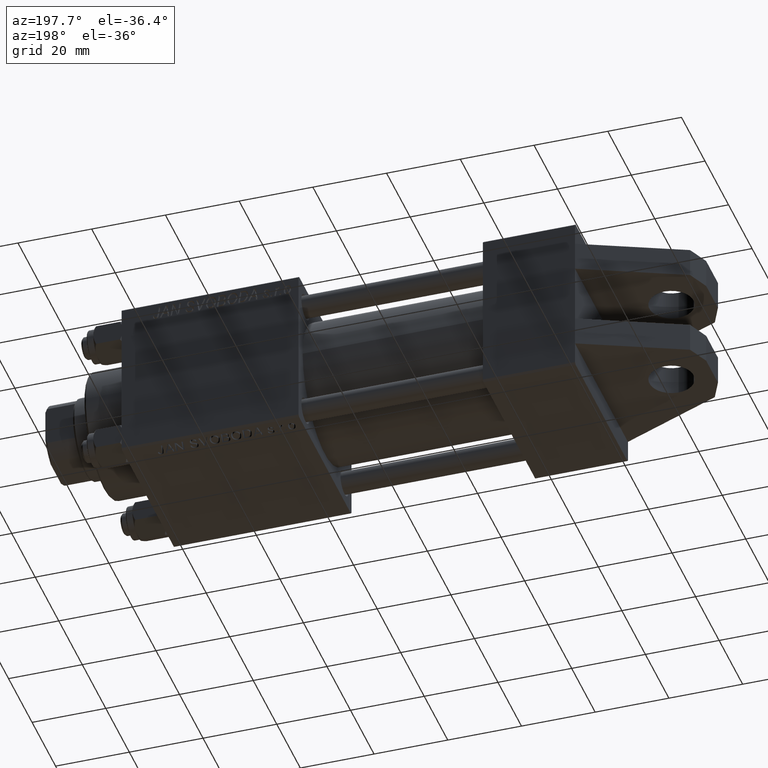
[diagram: clean part render]
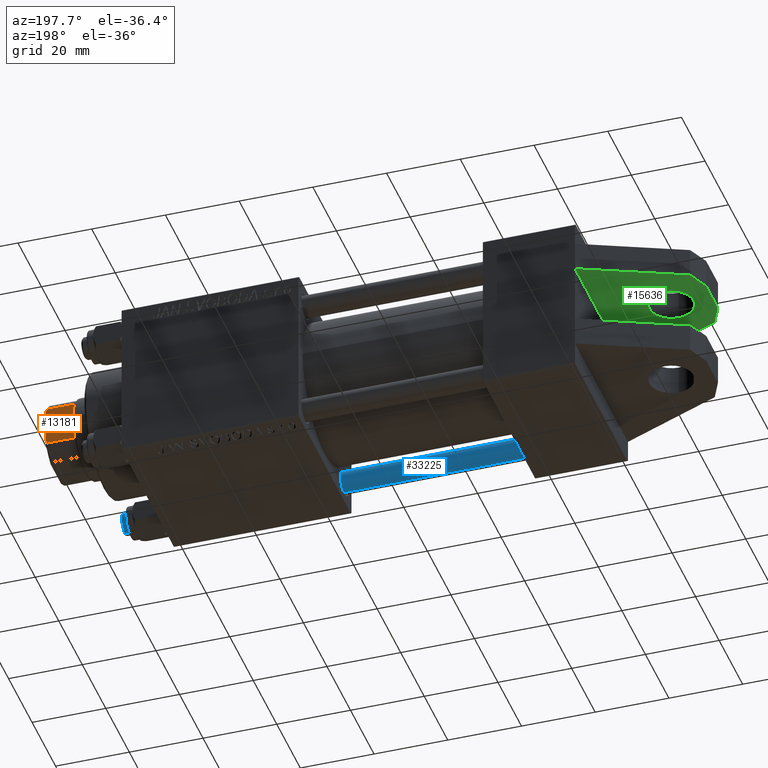
[diagram: same view with three faces highlighted in distinct colors, each labeled with its STEP entity id]
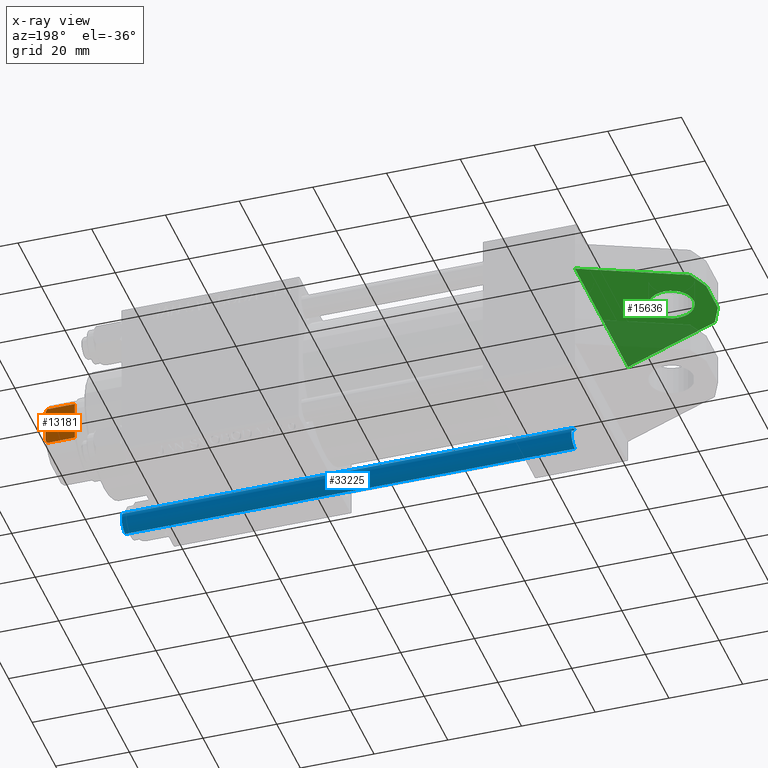
[diagram: x-ray of the same camera — body ghosted, the three highlighted faces saturated]
A machine part, auxiliary view with three faces highlighted in distinct colors.
The next image is the same camera in x-ray (body ghosted, the three faces saturated) — at least one of them is partly hidden behind the body in this view.
Their STEP definitions:

[orange] entity #13181 — the highlighted planar face has unit normal (0, -1, -0).
#341 = CARTESIAN_POINT ( 'NONE',  ( -8.999999999999996447, 5.408326913195988794, 115.0000000000000284 ) ) ;
#411 = LINE ( 'NONE', #8716, #27909 ) ;
#687 = CARTESIAN_POINT ( 'NONE',  ( -9.000000000000001776, -4.714305797500246697, 122.8450817439748448 ) ) ;
#2426 = CARTESIAN_POINT ( 'NONE',  ( -9.000000000000000000, -5.408326913195987018, 115.0000000000000284 ) ) ;
#2748 = ORIENTED_EDGE ( 'NONE', *, *, #19144, .T. ) ;
#3876 = CARTESIAN_POINT ( 'NONE',  ( -9.000000000000003553, 4.358898943540662430, 123.0000000000000000 ) ) ;
#4619 = CARTESIAN_POINT ( 'NONE',  ( -9.000000000000003553, -4.358898943540665094, 123.0000000000000000 ) ) ;
#7758 = EDGE_CURVE ( 'NONE', #40980, #47713, #25967, .T. ) ;
#8093 = LINE ( 'NONE', #11870, #24385 ) ;
#8716 = CARTESIAN_POINT ( 'NONE',  ( -8.999999999999996447, 5.408326913195991459, -0.001000000000001000089 ) ) ;
#9598 = VERTEX_POINT ( 'NONE', #48860 ) ;
#9675 = EDGE_CURVE ( 'NONE', #12448, #9598, #37076, .T. ) ;
#11870 = CARTESIAN_POINT ( 'NONE',  ( -9.000000000000003553, 8.999999999999998224, 123.0000000000000000 ) ) ;
#12448 = VERTEX_POINT ( 'NONE', #2426 ) ;
#12572 = DIRECTION ( 'NONE',  ( 1.000000000000000000, 9.637352644315595243E-17, -0.000000000000000000 ) ) ;
#13181 = ADVANCED_FACE ( 'NONE', ( #18140 ), #35201, .F. ) ;
#15991 = EDGE_CURVE ( 'NONE', #38950, #47713, #411, .T. ) ;
#18140 = FACE_OUTER_BOUND ( 'NONE', #32909, .T. ) ;
#19144 = EDGE_CURVE ( 'NONE', #38950, #12448, #47921, .T. ) ;
#20133 = CARTESIAN_POINT ( 'NONE',  ( -8.999999999999996447, 5.408326913195991459, 122.5000000000000000 ) ) ;
#20542 = CARTESIAN_POINT ( 'NONE',  ( -9.000000000000000000, -5.408326913195987018, 122.5000000000000000 ) ) ;
#21537 = CARTESIAN_POINT ( 'NONE',  ( -9.000000000000003553, 8.999999999999998224, 115.0000000000000000 ) ) ;
#22191 = EDGE_CURVE ( 'NONE', #9598, #47287, #32525, .T. ) ;
#22728 = CARTESIAN_POINT ( 'NONE',  ( -9.000000000000003553, 5.063687070142450786, 122.6775166608139216 ) ) ;
#23311 = CARTESIAN_POINT ( 'NONE',  ( -9.000000000000000000, -5.063687070142446345, 122.6775166608139216 ) ) ;
#24385 = VECTOR ( 'NONE', #42017, 1000.000000000000000 ) ;
#25967 = B_SPLINE_CURVE_WITH_KNOTS ( 'NONE', 3,
 ( #49354, #26016, #22728, #42061 ),
 .UNSPECIFIED., .F., .F.,
 ( 4, 4 ),
 ( 0.000000000000000000, 0.001162453897363206236 ),
 .UNSPECIFIED. ) ;
#26016 = CARTESIAN_POINT ( 'NONE',  ( -9.000000000000001776, 4.714305797500244921, 122.8450817439748448 ) ) ;
#27909 = VECTOR ( 'NONE', #35119, 1000.000000000000000 ) ;
#30934 = CARTESIAN_POINT ( 'NONE',  ( -9.000000000000003553, 8.999999999999998224, 123.0000000000000000 ) ) ;
#32525 = B_SPLINE_CURVE_WITH_KNOTS ( 'NONE', 3,
 ( #20542, #23311, #687, #38893 ),
 .UNSPECIFIED., .F., .F.,
 ( 4, 4 ),
 ( 0.000000000000000000, 0.001162453897363199297 ),
 .UNSPECIFIED. ) ;
#32909 = EDGE_LOOP ( 'NONE', ( #40272, #42917, #34760, #39762, #40735, #2748 ) ) ;
#33105 = DIRECTION ( 'NONE',  ( 9.637352644315595243E-17, -1.000000000000000000, 0.000000000000000000 ) ) ;
#34440 = VECTOR ( 'NONE', #33105, 1000.000000000000000 ) ;
#34760 = ORIENTED_EDGE ( 'NONE', *, *, #42316, .F. ) ;
#35119 = DIRECTION ( 'NONE',  ( -0.000000000000000000, -0.000000000000000000, 1.000000000000000000 ) ) ;
#35201 = PLANE ( 'NONE',  #43872 ) ;
#37076 = LINE ( 'NONE', #37803, #40691 ) ;
#37803 = CARTESIAN_POINT ( 'NONE',  ( -9.000000000000000000, -5.408326913195987018, -0.001000000000001000089 ) ) ;
#38893 = CARTESIAN_POINT ( 'NONE',  ( -9.000000000000003553, -4.358898943540665094, 123.0000000000000000 ) ) ;
#38950 = VERTEX_POINT ( 'NONE', #341 ) ;
#39205 = DIRECTION ( 'NONE',  ( -9.637352644315595243E-17, 1.000000000000000000, 0.000000000000000000 ) ) ;
#39762 = ORIENTED_EDGE ( 'NONE', *, *, #7758, .T. ) ;
#40272 = ORIENTED_EDGE ( 'NONE', *, *, #9675, .T. ) ;
#40691 = VECTOR ( 'NONE', #48613, 1000.000000000000000 ) ;
#40735 = ORIENTED_EDGE ( 'NONE', *, *, #15991, .F. ) ;
#40980 = VERTEX_POINT ( 'NONE', #3876 ) ;
#42017 = DIRECTION ( 'NONE',  ( 9.637352644315595243E-17, -1.000000000000000000, 0.000000000000000000 ) ) ;
#42061 = CARTESIAN_POINT ( 'NONE',  ( -8.999999999999996447, 5.408326913195991459, 122.5000000000000000 ) ) ;
#42316 = EDGE_CURVE ( 'NONE', #40980, #47287, #8093, .T. ) ;
#42917 = ORIENTED_EDGE ( 'NONE', *, *, #22191, .T. ) ;
#43872 = AXIS2_PLACEMENT_3D ( 'NONE', #30934, #12572, #39205 ) ;
#47287 = VERTEX_POINT ( 'NONE', #4619 ) ;
#47713 = VERTEX_POINT ( 'NONE', #20133 ) ;
#47921 = LINE ( 'NONE', #21537, #34440 ) ;
#48613 = DIRECTION ( 'NONE',  ( -0.000000000000000000, -0.000000000000000000, 1.000000000000000000 ) ) ;
#48860 = CARTESIAN_POINT ( 'NONE',  ( -9.000000000000000000, -5.408326913195987018, 122.5000000000000000 ) ) ;
#49354 = CARTESIAN_POINT ( 'NONE',  ( -9.000000000000003553, 4.358898943540662430, 123.0000000000000000 ) ) ;

[blue] entity #33225 — the highlighted cylindrical surface (edge-blend (fillet) strip) has radius 3 mm, axis along (-1, -0, 0).
#550 = CARTESIAN_POINT ( 'NONE',  ( -3.000000000000000444, 0.000000000000000000, 0.5000000000000004441 ) ) ;
#1844 = DIRECTION ( 'NONE',  ( -1.000000000000000000, 0.000000000000000000, 0.000000000000000000 ) ) ;
#2494 = CARTESIAN_POINT ( 'NONE',  ( 3.000000000000000444, 3.673940397442060361E-16, 122.4999999999999858 ) ) ;
#3912 = VERTEX_POINT ( 'NONE', #550 ) ;
#4163 = ORIENTED_EDGE ( 'NONE', *, *, #41540, .T. ) ;
#5870 = AXIS2_PLACEMENT_3D ( 'NONE', #26701, #42012, #7594 ) ;
#7594 = DIRECTION ( 'NONE',  ( 1.000000000000000000, 0.000000000000000000, 0.000000000000000000 ) ) ;
#7773 = AXIS2_PLACEMENT_3D ( 'NONE', #45080, #10650, #14682 ) ;
#8895 = DIRECTION ( 'NONE',  ( -0.000000000000000000, -0.000000000000000000, -1.000000000000000000 ) ) ;
#9691 = EDGE_CURVE ( 'NONE', #3912, #25500, #33491, .T. ) ;
#10259 = VECTOR ( 'NONE', #8895, 1000.000000000000000 ) ;
#10650 = DIRECTION ( 'NONE',  ( -0.000000000000000000, -0.000000000000000000, 1.000000000000000000 ) ) ;
#13089 = CARTESIAN_POINT ( 'NONE',  ( -3.000000000000000444, 0.000000000000000000, 122.4999999999999858 ) ) ;
#14414 = DIRECTION ( 'NONE',  ( -0.000000000000000000, -0.000000000000000000, -1.000000000000000000 ) ) ;
#14682 = DIRECTION ( 'NONE',  ( 1.000000000000000000, 0.000000000000000000, 0.000000000000000000 ) ) ;
#15908 = EDGE_LOOP ( 'NONE', ( #16596, #35443, #4163, #32095 ) ) ;
#16273 = EDGE_CURVE ( 'NONE', #21963, #25500, #39304, .T. ) ;
#16596 = ORIENTED_EDGE ( 'NONE', *, *, #16273, .F. ) ;
#21963 = VERTEX_POINT ( 'NONE', #2494 ) ;
#24745 = CARTESIAN_POINT ( 'NONE',  ( 3.000000000000000444, 3.673940397442060361E-16, 123.0000000000000000 ) ) ;
#25145 = AXIS2_PLACEMENT_3D ( 'NONE', #45050, #14414, #1844 ) ;
#25500 = VERTEX_POINT ( 'NONE', #46852 ) ;
#26149 = CARTESIAN_POINT ( 'NONE',  ( -3.000000000000000444, 0.000000000000000000, 123.0000000000000000 ) ) ;
#26701 = CARTESIAN_POINT ( 'NONE',  ( 0.000000000000000000, 0.000000000000000000, 122.4999999999999858 ) ) ;
#28359 = VECTOR ( 'NONE', #31100, 1000.000000000000000 ) ;
#31100 = DIRECTION ( 'NONE',  ( -0.000000000000000000, -0.000000000000000000, -1.000000000000000000 ) ) ;
#32095 = ORIENTED_EDGE ( 'NONE', *, *, #9691, .T. ) ;
#32788 = CYLINDRICAL_SURFACE ( 'NONE', #25145, 3.000000000000000444 ) ;
#33225 = ADVANCED_FACE ( 'NONE', ( #48330 ), #32788, .T. ) ;
#33480 = EDGE_CURVE ( 'NONE', #21963, #38477, #47573, .T. ) ;
#33491 = CIRCLE ( 'NONE', #7773, 3.000000000000000444 ) ;
#35443 = ORIENTED_EDGE ( 'NONE', *, *, #33480, .T. ) ;
#38477 = VERTEX_POINT ( 'NONE', #13089 ) ;
#39304 = LINE ( 'NONE', #24745, #10259 ) ;
#41540 = EDGE_CURVE ( 'NONE', #38477, #3912, #49005, .T. ) ;
#42012 = DIRECTION ( 'NONE',  ( 0.000000000000000000, 0.000000000000000000, -1.000000000000000000 ) ) ;
#45050 = CARTESIAN_POINT ( 'NONE',  ( 0.000000000000000000, 0.000000000000000000, 123.0000000000000000 ) ) ;
#45080 = CARTESIAN_POINT ( 'NONE',  ( 0.000000000000000000, 0.000000000000000000, 0.5000000000000004441 ) ) ;
#46852 = CARTESIAN_POINT ( 'NONE',  ( 3.000000000000000444, 3.673940397442060361E-16, 0.5000000000000004441 ) ) ;
#47573 = CIRCLE ( 'NONE', #5870, 3.000000000000000444 ) ;
#48330 = FACE_OUTER_BOUND ( 'NONE', #15908, .T. ) ;
#49005 = LINE ( 'NONE', #26149, #28359 ) ;

[green] entity #15636 — the highlighted planar face has unit normal (0, 0, 1).
#1393 = VECTOR ( 'NONE', #16606, 1000.000000000000000 ) ;
#2068 = VERTEX_POINT ( 'NONE', #48736 ) ;
#2471 = EDGE_CURVE ( 'NONE', #42100, #29466, #40528, .T. ) ;
#2768 = VECTOR ( 'NONE', #33497, 1000.000000000000000 ) ;
#3755 = FACE_OUTER_BOUND ( 'NONE', #5079, .T. ) ;
#3842 = ORIENTED_EDGE ( 'NONE', *, *, #2471, .T. ) ;
#4012 = DIRECTION ( 'NONE',  ( -0.9186825547302631678, 0.000000000000000000, 0.3949966628141013958 ) ) ;
#4466 = ORIENTED_EDGE ( 'NONE', *, *, #32323, .F. ) ;
#4500 = ORIENTED_EDGE ( 'NONE', *, *, #45301, .F. ) ;
#5079 = EDGE_LOOP ( 'NONE', ( #7031, #10588, #12128, #18883, #3842, #10043 ) ) ;
#5528 = LINE ( 'NONE', #20611, #39850 ) ;
#6145 = CARTESIAN_POINT ( 'NONE',  ( -27.31637403794659136, -8.000000000000000000, -10.75505444768274543 ) ) ;
#6386 = LINE ( 'NONE', #6145, #8952 ) ;
#7031 = ORIENTED_EDGE ( 'NONE', *, *, #21029, .T. ) ;
#7278 = DIRECTION ( 'NONE',  ( 0.000000000000000000, 0.000000000000000000, 1.000000000000000000 ) ) ;
#8952 = VECTOR ( 'NONE', #4012, 1000.000000000000227 ) ;
#9473 = VERTEX_POINT ( 'NONE', #42851 ) ;
#10043 = ORIENTED_EDGE ( 'NONE', *, *, #14037, .T. ) ;
#10331 = CARTESIAN_POINT ( 'NONE',  ( -30.00000000000000000, -8.000000000000000000, 4.999999999999996447 ) ) ;
#10580 = CARTESIAN_POINT ( 'NONE',  ( -19.00000000000000000, -8.000000000000000000, 5.999999999999997335 ) ) ;
#10588 = ORIENTED_EDGE ( 'NONE', *, *, #33663, .T. ) ;
#10910 = EDGE_CURVE ( 'NONE', #26606, #44409, #38481, .T. ) ;
#11053 = CARTESIAN_POINT ( 'NONE',  ( 0.000000000000000000, -8.000000000000000000, 0.000000000000000000 ) ) ;
#12128 = ORIENTED_EDGE ( 'NONE', *, *, #10910, .T. ) ;
#12494 = CARTESIAN_POINT ( 'NONE',  ( -30.00000000000000000, -8.000000000000000000, -5.000000000000003553 ) ) ;
#13046 = VERTEX_POINT ( 'NONE', #10580 ) ;
#13879 = VECTOR ( 'NONE', #38446, 999.9999999999998863 ) ;
#13909 = DIRECTION ( 'NONE',  ( 0.000000000000000000, 0.000000000000000000, 1.000000000000000000 ) ) ;
#14037 = EDGE_CURVE ( 'NONE', #29466, #44780, #5528, .T. ) ;
#14113 = DIRECTION ( 'NONE',  ( 0.3949966628141011737, 0.000000000000000000, 0.9186825547302632788 ) ) ;
#14595 = CARTESIAN_POINT ( 'NONE',  ( -27.49177119113045720, -8.000000000000000000, 10.83363422253716735 ) ) ;
#15636 = ADVANCED_FACE ( 'NONE', ( #38194, #3755 ), #45471, .F. ) ;
#16452 = CARTESIAN_POINT ( 'NONE',  ( -27.31637403794659136, -8.000000000000000000, -10.75505444768274543 ) ) ;
#16606 = DIRECTION ( 'NONE',  ( 0.000000000000000000, 0.000000000000000000, -1.000000000000000000 ) ) ;
#18883 = ORIENTED_EDGE ( 'NONE', *, *, #29873, .T. ) ;
#19128 = CARTESIAN_POINT ( 'NONE',  ( -19.00000000000000000, -8.000000000000000000, -3.469446951953614189E-15 ) ) ;
#19129 = CARTESIAN_POINT ( 'NONE',  ( 0.000000000000000000, -8.000000000000000000, 22.50000000000000000 ) ) ;
#20611 = CARTESIAN_POINT ( 'NONE',  ( -30.00000000000000000, -8.000000000000000000, -5.000000000000003553 ) ) ;
#21029 = EDGE_CURVE ( 'NONE', #44780, #9473, #44015, .T. ) ;
#22172 = DIRECTION ( 'NONE',  ( -0.000000000000000000, 1.000000000000000000, -0.000000000000000000 ) ) ;
#23094 = CARTESIAN_POINT ( 'NONE',  ( 0.000000000000000000, -8.000000000000000000, 22.50000000000000000 ) ) ;
#23118 = LINE ( 'NONE', #14595, #13879 ) ;
#23557 = EDGE_LOOP ( 'NONE', ( #4500, #4466 ) ) ;
#25229 = CARTESIAN_POINT ( 'NONE',  ( 0.000000000000000000, -8.000000000000000000, -22.50000000000000711 ) ) ;
#26606 = VERTEX_POINT ( 'NONE', #23094 ) ;
#29466 = VERTEX_POINT ( 'NONE', #12494 ) ;
#29873 = EDGE_CURVE ( 'NONE', #44409, #42100, #6386, .T. ) ;
#30213 = DIRECTION ( 'NONE',  ( 0.000000000000000000, 0.000000000000000000, 1.000000000000000000 ) ) ;
#31483 = CIRCLE ( 'NONE', #43517, 6.000000000000000888 ) ;
#32323 = EDGE_CURVE ( 'NONE', #2068, #13046, #31483, .T. ) ;
#33497 = DIRECTION ( 'NONE',  ( -0.4226182617406942232, 0.000000000000000000, 0.9063077870366523792 ) ) ;
#33663 = EDGE_CURVE ( 'NONE', #9473, #26606, #23118, .T. ) ;
#36897 = VECTOR ( 'NONE', #14113, 1000.000000000000000 ) ;
#38194 = FACE_BOUND ( 'NONE', #23557, .T. ) ;
#38446 = DIRECTION ( 'NONE',  ( 0.9205433724492674274, 0.000000000000000000, 0.3906403709804319724 ) ) ;
#38481 = LINE ( 'NONE', #19129, #1393 ) ;
#39850 = VECTOR ( 'NONE', #48235, 1000.000000000000000 ) ;
#40528 = LINE ( 'NONE', #44289, #2768 ) ;
#40563 = AXIS2_PLACEMENT_3D ( 'NONE', #19128, #22172, #30213 ) ;
#41696 = DIRECTION ( 'NONE',  ( 0.000000000000000000, -1.000000000000000000, 0.000000000000000000 ) ) ;
#42100 = VERTEX_POINT ( 'NONE', #16452 ) ;
#42851 = CARTESIAN_POINT ( 'NONE',  ( -27.49177119113045720, -8.000000000000000000, 10.83363422253716735 ) ) ;
#43517 = AXIS2_PLACEMENT_3D ( 'NONE', #45469, #44554, #13909 ) ;
#44015 = LINE ( 'NONE', #10331, #36897 ) ;
#44289 = CARTESIAN_POINT ( 'NONE',  ( -30.00000000000000000, -8.000000000000000000, -5.000000000000003553 ) ) ;
#44409 = VERTEX_POINT ( 'NONE', #25229 ) ;
#44497 = CIRCLE ( 'NONE', #40563, 6.000000000000000888 ) ;
#44554 = DIRECTION ( 'NONE',  ( -0.000000000000000000, 1.000000000000000000, -0.000000000000000000 ) ) ;
#44780 = VERTEX_POINT ( 'NONE', #47507 ) ;
#45301 = EDGE_CURVE ( 'NONE', #13046, #2068, #44497, .T. ) ;
#45469 = CARTESIAN_POINT ( 'NONE',  ( -19.00000000000000000, -8.000000000000000000, -3.469446951953614189E-15 ) ) ;
#45471 = PLANE ( 'NONE',  #45546 ) ;
#45546 = AXIS2_PLACEMENT_3D ( 'NONE', #11053, #41696, #7278 ) ;
#47507 = CARTESIAN_POINT ( 'NONE',  ( -30.00000000000000000, -8.000000000000000000, 4.999999999999996447 ) ) ;
#48235 = DIRECTION ( 'NONE',  ( 0.000000000000000000, 0.000000000000000000, 1.000000000000000000 ) ) ;
#48736 = CARTESIAN_POINT ( 'NONE',  ( -19.00000000000000000, -8.000000000000000000, -6.000000000000004441 ) ) ;